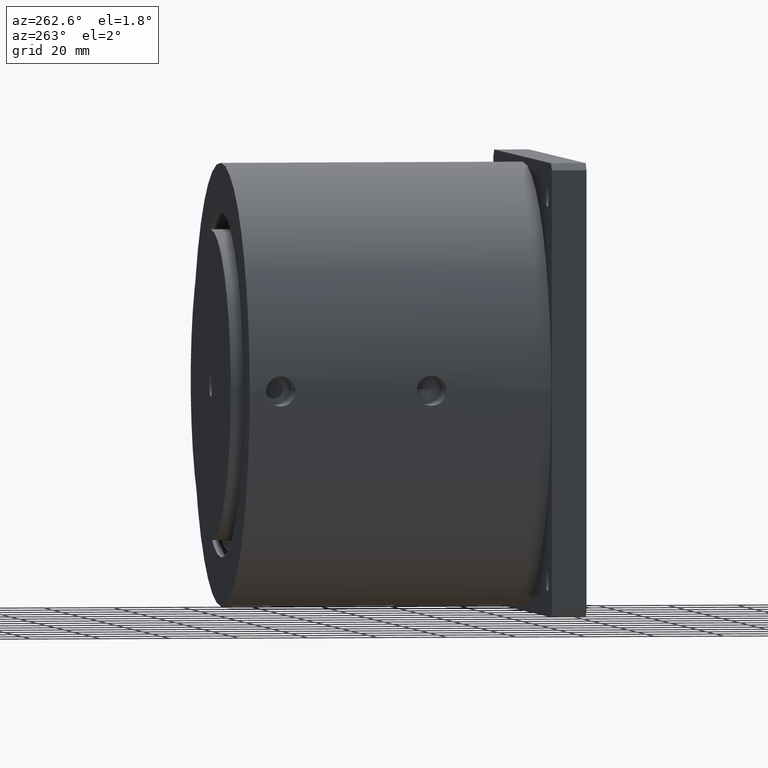
[diagram: clean part render]
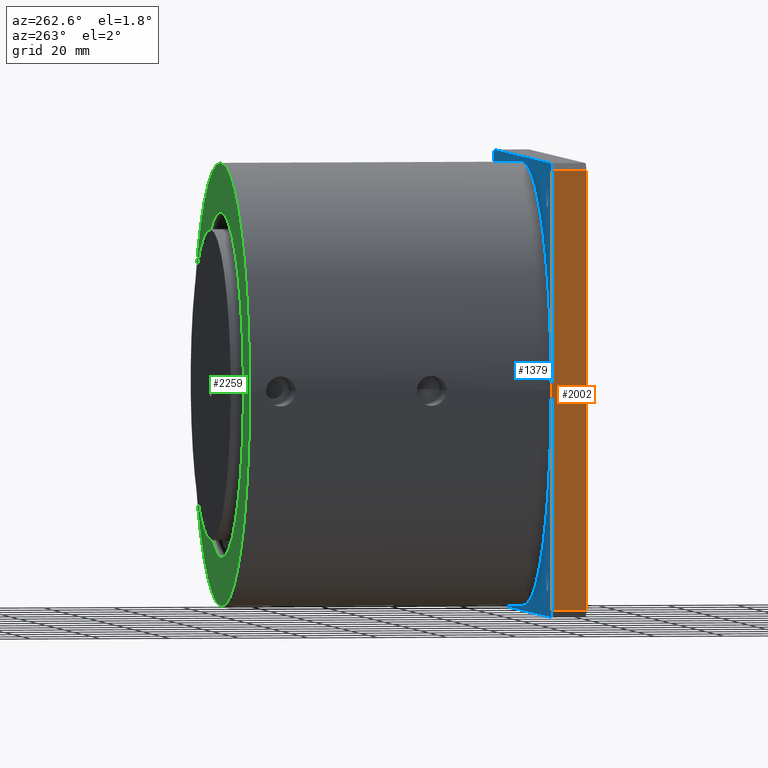
[diagram: same view with three faces highlighted in distinct colors, each labeled with its STEP entity id]
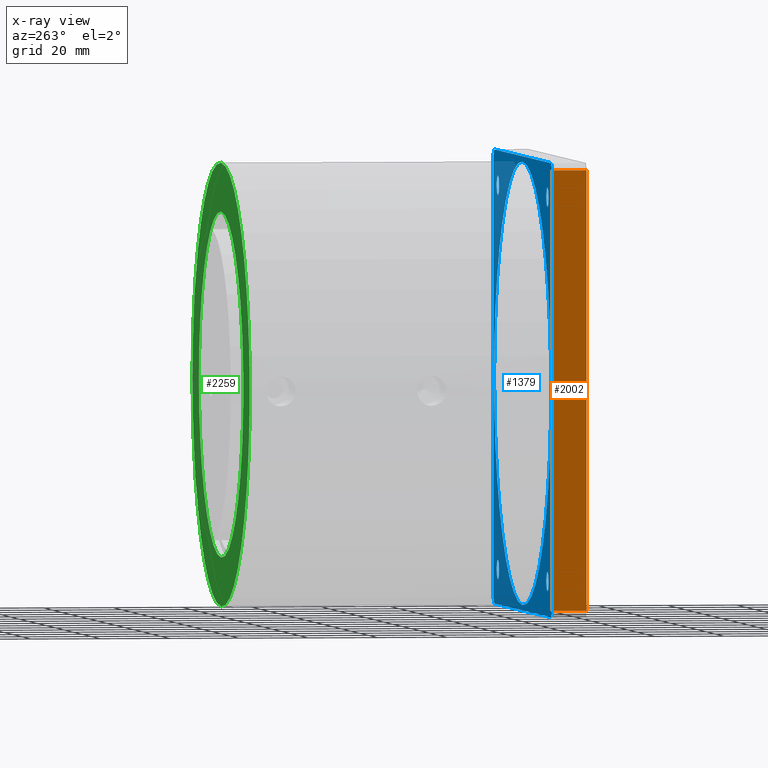
[diagram: x-ray of the same camera — body ghosted, the three highlighted faces saturated]
A machine part, auxiliary view with three faces highlighted in distinct colors.
The next image is the same camera in x-ray (body ghosted, the three faces saturated) — at least one of them is partly hidden behind the body in this view.
Their STEP definitions:

[orange] entity #2002 — the highlighted planar face has unit normal (-1, 0, 0).
#412=DIRECTION('',(0.E0,0.E0,1.E0));
#413=VECTOR('',#412,1.26E2);
#414=CARTESIAN_POINT('',(-6.5E1,0.E0,-6.3E1));
#415=LINE('',#414,#413);
#1101=DIRECTION('',(0.E0,0.E0,1.E0));
#1102=VECTOR('',#1101,1.26E2);
#1103=CARTESIAN_POINT('',(-6.5E1,1.E1,-6.3E1));
#1104=LINE('',#1103,#1102);
#1192=DIRECTION('',(0.E0,-1.E0,0.E0));
#1193=VECTOR('',#1192,1.E1);
#1194=CARTESIAN_POINT('',(-6.5E1,1.E1,-6.3E1));
#1195=LINE('',#1194,#1193);
#1199=DIRECTION('',(0.E0,-1.E0,0.E0));
#1200=VECTOR('',#1199,1.E1);
#1201=CARTESIAN_POINT('',(-6.5E1,1.E1,6.3E1));
#1202=LINE('',#1201,#1200);
#1246=CARTESIAN_POINT('',(-6.5E1,0.E0,-6.3E1));
#1248=VERTEX_POINT('',#1246);
#1252=CARTESIAN_POINT('',(-6.5E1,1.E1,-6.3E1));
#1253=VERTEX_POINT('',#1252);
#1271=CARTESIAN_POINT('',(-6.5E1,0.E0,6.3E1));
#1273=VERTEX_POINT('',#1271);
#1274=CARTESIAN_POINT('',(-6.5E1,1.E1,6.3E1));
#1275=VERTEX_POINT('',#1274);
#1991=CARTESIAN_POINT('',(-6.5E1,0.E0,-6.5E1));
#1992=DIRECTION('',(-1.E0,0.E0,0.E0));
#1993=DIRECTION('',(0.E0,0.E0,1.E0));
#1994=AXIS2_PLACEMENT_3D('',#1991,#1992,#1993);
#1995=PLANE('',#1994);
#1996=ORIENTED_EDGE('',*,*,#1908,.F.);
#1997=ORIENTED_EDGE('',*,*,#1794,.T.);
#1998=ORIENTED_EDGE('',*,*,#1984,.T.);
#1999=ORIENTED_EDGE('',*,*,#1333,.F.);
#2000=EDGE_LOOP('',(#1996,#1997,#1998,#1999));
#2001=FACE_OUTER_BOUND('',#2000,.F.);
#1333=EDGE_CURVE('',#1248,#1273,#415,.T.);
#1794=EDGE_CURVE('',#1253,#1275,#1104,.T.);
#1908=EDGE_CURVE('',#1253,#1248,#1195,.T.);
#1984=EDGE_CURVE('',#1275,#1273,#1202,.T.);
#2002=ADVANCED_FACE('',(#2001),#1995,.T.);

[blue] entity #1379 — the highlighted planar face has unit normal (0, -1, 0).
#324=CARTESIAN_POINT('',(0.E0,0.E0,0.E0));
#325=DIRECTION('',(0.E0,-1.E0,0.E0));
#326=DIRECTION('',(1.E0,0.E0,0.E0));
#327=AXIS2_PLACEMENT_3D('',#324,#325,#326);
#333=CARTESIAN_POINT('',(0.E0,0.E0,0.E0));
#334=DIRECTION('',(0.E0,-1.E0,0.E0));
#335=DIRECTION('',(-1.E0,0.E0,0.E0));
#336=AXIS2_PLACEMENT_3D('',#333,#334,#335);
#341=CARTESIAN_POINT('',(-5.5E1,0.E0,5.5E1));
#342=DIRECTION('',(0.E0,-1.E0,0.E0));
#343=DIRECTION('',(-1.E0,0.E0,0.E0));
#344=AXIS2_PLACEMENT_3D('',#341,#342,#343);
#349=CARTESIAN_POINT('',(-5.5E1,0.E0,5.5E1));
#350=DIRECTION('',(0.E0,-1.E0,0.E0));
#351=DIRECTION('',(1.E0,0.E0,0.E0));
#352=AXIS2_PLACEMENT_3D('',#349,#350,#351);
#357=CARTESIAN_POINT('',(5.5E1,0.E0,5.5E1));
#358=DIRECTION('',(0.E0,1.E0,0.E0));
#359=DIRECTION('',(1.E0,0.E0,0.E0));
#360=AXIS2_PLACEMENT_3D('',#357,#358,#359);
#365=CARTESIAN_POINT('',(5.5E1,0.E0,5.5E1));
#366=DIRECTION('',(0.E0,1.E0,0.E0));
#367=DIRECTION('',(-1.E0,0.E0,0.E0));
#368=AXIS2_PLACEMENT_3D('',#365,#366,#367);
#373=CARTESIAN_POINT('',(-5.5E1,0.E0,-5.5E1));
#374=DIRECTION('',(0.E0,1.E0,0.E0));
#375=DIRECTION('',(-1.E0,0.E0,0.E0));
#376=AXIS2_PLACEMENT_3D('',#373,#374,#375);
#381=CARTESIAN_POINT('',(-5.5E1,0.E0,-5.5E1));
#382=DIRECTION('',(0.E0,1.E0,0.E0));
#383=DIRECTION('',(1.E0,0.E0,0.E0));
#384=AXIS2_PLACEMENT_3D('',#381,#382,#383);
#389=CARTESIAN_POINT('',(5.5E1,0.E0,-5.5E1));
#390=DIRECTION('',(0.E0,-1.E0,0.E0));
#391=DIRECTION('',(1.E0,0.E0,0.E0));
#392=AXIS2_PLACEMENT_3D('',#389,#390,#391);
#397=CARTESIAN_POINT('',(5.5E1,0.E0,-5.5E1));
#398=DIRECTION('',(0.E0,-1.E0,0.E0));
#399=DIRECTION('',(-1.E0,0.E0,0.E0));
#400=AXIS2_PLACEMENT_3D('',#397,#398,#399);
#405=DIRECTION('',(7.071067811865E-1,0.E0,-7.071067811865E-1));
#406=VECTOR('',#405,2.828427124746E0);
#407=CARTESIAN_POINT('',(-6.5E1,0.E0,-6.3E1));
#408=LINE('',#407,#406);
#412=DIRECTION('',(0.E0,0.E0,1.E0));
#413=VECTOR('',#412,1.26E2);
#414=CARTESIAN_POINT('',(-6.5E1,0.E0,-6.3E1));
#415=LINE('',#414,#413);
#419=DIRECTION('',(-7.071067811865E-1,0.E0,-7.071067811865E-1));
#420=VECTOR('',#419,2.828427124746E0);
#421=CARTESIAN_POINT('',(-6.3E1,0.E0,6.5E1));
#422=LINE('',#421,#420);
#426=DIRECTION('',(1.E0,0.E0,0.E0));
#427=VECTOR('',#426,1.26E2);
#428=CARTESIAN_POINT('',(-6.3E1,0.E0,6.5E1));
#429=LINE('',#428,#427);
#433=DIRECTION('',(-7.071067811865E-1,0.E0,7.071067811865E-1));
#434=VECTOR('',#433,2.828427124746E0);
#435=CARTESIAN_POINT('',(6.5E1,0.E0,6.3E1));
#436=LINE('',#435,#434);
#440=DIRECTION('',(0.E0,0.E0,-1.E0));
#441=VECTOR('',#440,1.26E2);
#442=CARTESIAN_POINT('',(6.5E1,0.E0,6.3E1));
#443=LINE('',#442,#441);
#447=DIRECTION('',(7.071067811865E-1,0.E0,7.071067811865E-1));
#448=VECTOR('',#447,2.828427124746E0);
#449=CARTESIAN_POINT('',(6.3E1,0.E0,-6.5E1));
#450=LINE('',#449,#448);
#454=DIRECTION('',(-1.E0,0.E0,0.E0));
#455=VECTOR('',#454,1.26E2);
#456=CARTESIAN_POINT('',(6.3E1,0.E0,-6.5E1));
#457=LINE('',#456,#455);
#1206=CARTESIAN_POINT('',(-5.775E1,0.E0,5.5E1));
#1207=CARTESIAN_POINT('',(-5.225E1,0.E0,5.5E1));
#1208=VERTEX_POINT('',#1206);
#1209=VERTEX_POINT('',#1207);
#1218=CARTESIAN_POINT('',(6.35E1,0.E0,0.E0));
#1219=CARTESIAN_POINT('',(-6.35E1,0.E0,1.555301434917E-14));
#1220=VERTEX_POINT('',#1218);
#1221=VERTEX_POINT('',#1219);
#1223=CARTESIAN_POINT('',(5.775E1,0.E0,5.5E1));
#1225=VERTEX_POINT('',#1223);
#1227=CARTESIAN_POINT('',(5.225E1,0.E0,5.5E1));
#1229=VERTEX_POINT('',#1227);
#1231=CARTESIAN_POINT('',(-5.775E1,0.E0,-5.5E1));
#1233=VERTEX_POINT('',#1231);
#1235=CARTESIAN_POINT('',(-5.225E1,0.E0,-5.5E1));
#1237=VERTEX_POINT('',#1235);
#1239=CARTESIAN_POINT('',(5.775E1,0.E0,-5.5E1));
#1241=VERTEX_POINT('',#1239);
#1243=CARTESIAN_POINT('',(5.225E1,0.E0,-5.5E1));
#1245=VERTEX_POINT('',#1243);
#1246=CARTESIAN_POINT('',(-6.5E1,0.E0,-6.3E1));
#1247=CARTESIAN_POINT('',(-6.3E1,0.E0,-6.5E1));
#1248=VERTEX_POINT('',#1246);
#1249=VERTEX_POINT('',#1247);
#1254=CARTESIAN_POINT('',(6.3E1,0.E0,-6.5E1));
#1255=CARTESIAN_POINT('',(6.5E1,0.E0,-6.3E1));
#1256=VERTEX_POINT('',#1254);
#1257=VERTEX_POINT('',#1255);
#1262=CARTESIAN_POINT('',(6.5E1,0.E0,6.3E1));
#1263=CARTESIAN_POINT('',(6.3E1,0.E0,6.5E1));
#1264=VERTEX_POINT('',#1262);
#1265=VERTEX_POINT('',#1263);
#1270=CARTESIAN_POINT('',(-6.3E1,0.E0,6.5E1));
#1271=CARTESIAN_POINT('',(-6.5E1,0.E0,6.3E1));
#1272=VERTEX_POINT('',#1270);
#1273=VERTEX_POINT('',#1271);
#1326=CARTESIAN_POINT('',(0.E0,0.E0,0.E0));
#1327=DIRECTION('',(0.E0,1.E0,0.E0));
#1328=DIRECTION('',(1.E0,0.E0,0.E0));
#1329=AXIS2_PLACEMENT_3D('',#1326,#1327,#1328);
#1330=PLANE('',#1329);
#1332=ORIENTED_EDGE('',*,*,#1331,.F.);
#1334=ORIENTED_EDGE('',*,*,#1333,.T.);
#1336=ORIENTED_EDGE('',*,*,#1335,.F.);
#1338=ORIENTED_EDGE('',*,*,#1337,.T.);
#1340=ORIENTED_EDGE('',*,*,#1339,.F.);
#1342=ORIENTED_EDGE('',*,*,#1341,.T.);
#1344=ORIENTED_EDGE('',*,*,#1343,.F.);
#1346=ORIENTED_EDGE('',*,*,#1345,.T.);
#1347=EDGE_LOOP('',(#1332,#1334,#1336,#1338,#1340,#1342,#1344,#1346));
#1348=FACE_OUTER_BOUND('',#1347,.F.);
#1350=ORIENTED_EDGE('',*,*,#1349,.T.);
#1352=ORIENTED_EDGE('',*,*,#1351,.T.);
#1353=EDGE_LOOP('',(#1350,#1352));
#1354=FACE_BOUND('',#1353,.F.);
#1356=ORIENTED_EDGE('',*,*,#1355,.F.);
#1358=ORIENTED_EDGE('',*,*,#1357,.F.);
#1359=EDGE_LOOP('',(#1356,#1358));
#1360=FACE_BOUND('',#1359,.F.);
#1362=ORIENTED_EDGE('',*,*,#1361,.F.);
#1364=ORIENTED_EDGE('',*,*,#1363,.F.);
#1365=EDGE_LOOP('',(#1362,#1364));
#1366=FACE_BOUND('',#1365,.F.);
#1368=ORIENTED_EDGE('',*,*,#1367,.T.);
#1370=ORIENTED_EDGE('',*,*,#1369,.T.);
#1371=EDGE_LOOP('',(#1368,#1370));
#1372=FACE_BOUND('',#1371,.F.);
#1374=ORIENTED_EDGE('',*,*,#1373,.T.);
#1376=ORIENTED_EDGE('',*,*,#1375,.T.);
#1377=EDGE_LOOP('',(#1374,#1376));
#1378=FACE_BOUND('',#1377,.F.);
#328=CIRCLE('',#327,6.35E1);
#337=CIRCLE('',#336,6.35E1);
#345=CIRCLE('',#344,2.75E0);
#353=CIRCLE('',#352,2.75E0);
#361=CIRCLE('',#360,2.75E0);
#369=CIRCLE('',#368,2.75E0);
#377=CIRCLE('',#376,2.75E0);
#385=CIRCLE('',#384,2.75E0);
#393=CIRCLE('',#392,2.75E0);
#401=CIRCLE('',#400,2.75E0);
#1331=EDGE_CURVE('',#1248,#1249,#408,.T.);
#1333=EDGE_CURVE('',#1248,#1273,#415,.T.);
#1335=EDGE_CURVE('',#1272,#1273,#422,.T.);
#1337=EDGE_CURVE('',#1272,#1265,#429,.T.);
#1339=EDGE_CURVE('',#1264,#1265,#436,.T.);
#1341=EDGE_CURVE('',#1264,#1257,#443,.T.);
#1343=EDGE_CURVE('',#1256,#1257,#450,.T.);
#1345=EDGE_CURVE('',#1256,#1249,#457,.T.);
#1349=EDGE_CURVE('',#1208,#1209,#345,.T.);
#1351=EDGE_CURVE('',#1209,#1208,#353,.T.);
#1355=EDGE_CURVE('',#1225,#1229,#361,.T.);
#1357=EDGE_CURVE('',#1229,#1225,#369,.T.);
#1361=EDGE_CURVE('',#1233,#1237,#377,.T.);
#1363=EDGE_CURVE('',#1237,#1233,#385,.T.);
#1367=EDGE_CURVE('',#1241,#1245,#393,.T.);
#1369=EDGE_CURVE('',#1245,#1241,#401,.T.);
#1373=EDGE_CURVE('',#1220,#1221,#328,.T.);
#1375=EDGE_CURVE('',#1221,#1220,#337,.T.);
#1379=ADVANCED_FACE('',(#1348,#1354,#1360,#1366,#1372,#1378),#1330,.F.);

[green] entity #2259 — the highlighted planar face has unit normal (0, 1, 0).
#2136=CARTESIAN_POINT('',(0.E0,0.E0,2.E0));
#2137=DIRECTION('',(0.E0,0.E0,-1.E0));
#2138=DIRECTION('',(1.E0,0.E0,0.E0));
#2139=AXIS2_PLACEMENT_3D('',#2136,#2137,#2138);
#2144=CARTESIAN_POINT('',(0.E0,0.E0,2.E0));
#2145=DIRECTION('',(0.E0,0.E0,-1.E0));
#2146=DIRECTION('',(-1.E0,0.E0,0.E0));
#2147=AXIS2_PLACEMENT_3D('',#2144,#2145,#2146);
#2152=CARTESIAN_POINT('',(0.E0,0.E0,2.E0));
#2153=DIRECTION('',(0.E0,0.E0,1.E0));
#2154=DIRECTION('',(1.E0,0.E0,0.E0));
#2155=AXIS2_PLACEMENT_3D('',#2152,#2153,#2154);
#2160=CARTESIAN_POINT('',(0.E0,0.E0,2.E0));
#2161=DIRECTION('',(0.E0,0.E0,1.E0));
#2162=DIRECTION('',(-1.E0,0.E0,0.E0));
#2163=AXIS2_PLACEMENT_3D('',#2160,#2161,#2162);
#2190=CARTESIAN_POINT('',(4.95E1,0.E0,2.E0));
#2191=CARTESIAN_POINT('',(-4.95E1,0.E0,2.E0));
#2192=VERTEX_POINT('',#2190);
#2193=VERTEX_POINT('',#2191);
#2194=CARTESIAN_POINT('',(6.35E1,0.E0,2.E0));
#2195=CARTESIAN_POINT('',(-6.35E1,1.555301434917E-14,2.E0));
#2196=VERTEX_POINT('',#2194);
#2197=VERTEX_POINT('',#2195);
#2244=CARTESIAN_POINT('',(0.E0,0.E0,2.E0));
#2245=DIRECTION('',(0.E0,0.E0,1.E0));
#2246=DIRECTION('',(1.E0,0.E0,0.E0));
#2247=AXIS2_PLACEMENT_3D('',#2244,#2245,#2246);
#2248=PLANE('',#2247);
#2250=ORIENTED_EDGE('',*,*,#2249,.F.);
#2252=ORIENTED_EDGE('',*,*,#2251,.F.);
#2253=EDGE_LOOP('',(#2250,#2252));
#2254=FACE_OUTER_BOUND('',#2253,.F.);
#2255=ORIENTED_EDGE('',*,*,#2224,.F.);
#2256=ORIENTED_EDGE('',*,*,#2238,.F.);
#2257=EDGE_LOOP('',(#2255,#2256));
#2258=FACE_BOUND('',#2257,.F.);
#2140=CIRCLE('',#2139,4.95E1);
#2148=CIRCLE('',#2147,4.95E1);
#2156=CIRCLE('',#2155,6.35E1);
#2164=CIRCLE('',#2163,6.35E1);
#2224=EDGE_CURVE('',#2192,#2193,#2140,.T.);
#2238=EDGE_CURVE('',#2193,#2192,#2148,.T.);
#2249=EDGE_CURVE('',#2196,#2197,#2156,.T.);
#2251=EDGE_CURVE('',#2197,#2196,#2164,.T.);
#2259=ADVANCED_FACE('',(#2254,#2258),#2248,.T.);